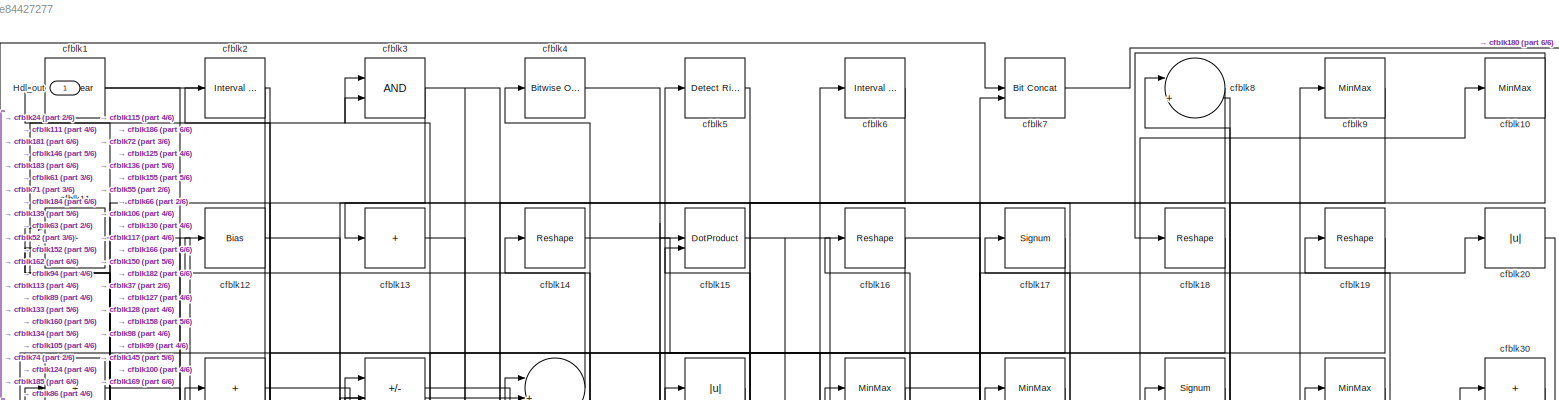
[diagram: root canvas - part 1/6, full width, top band]
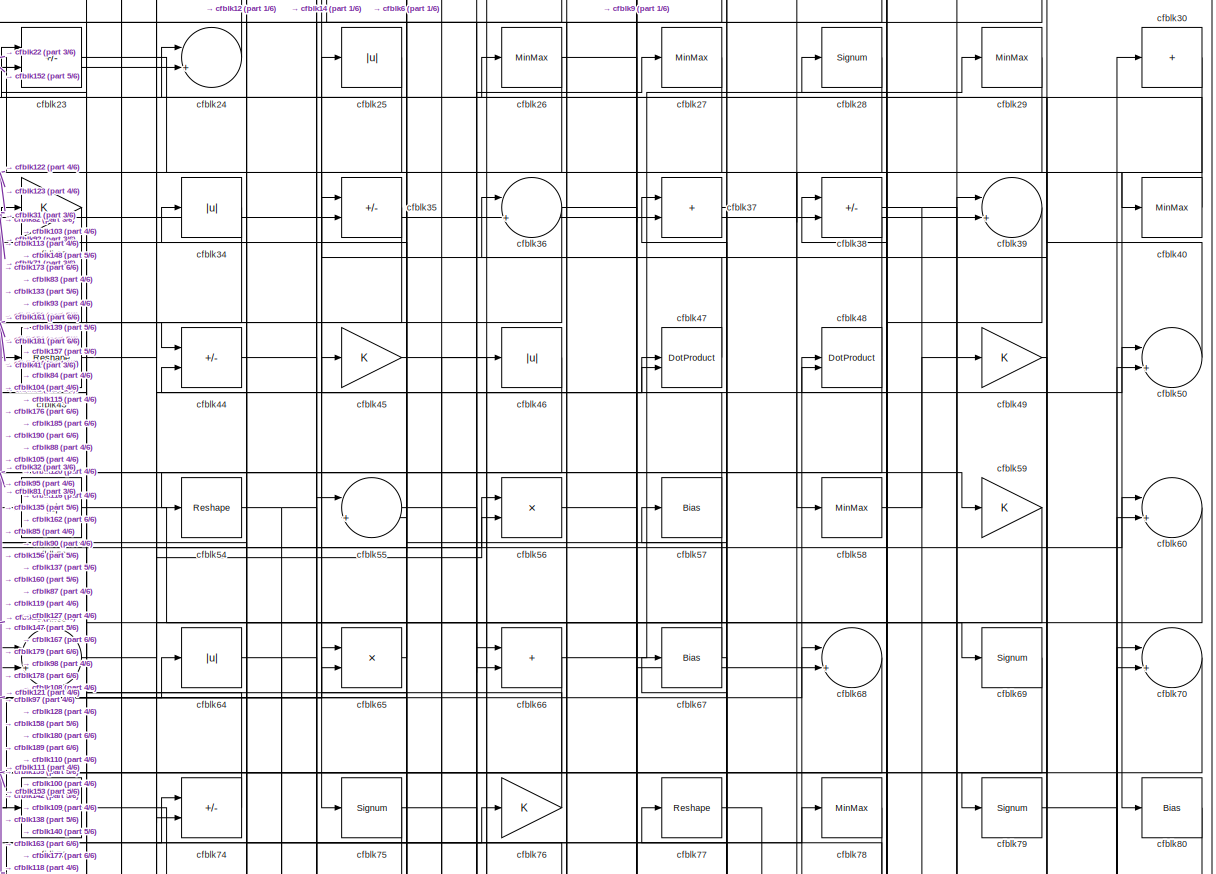
[diagram: root canvas - part 2/6, full width, top band]
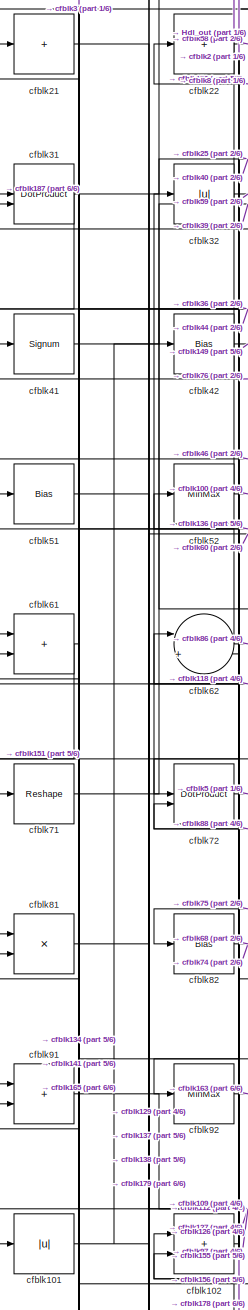
[diagram: root canvas - part 3/6, middle left region]
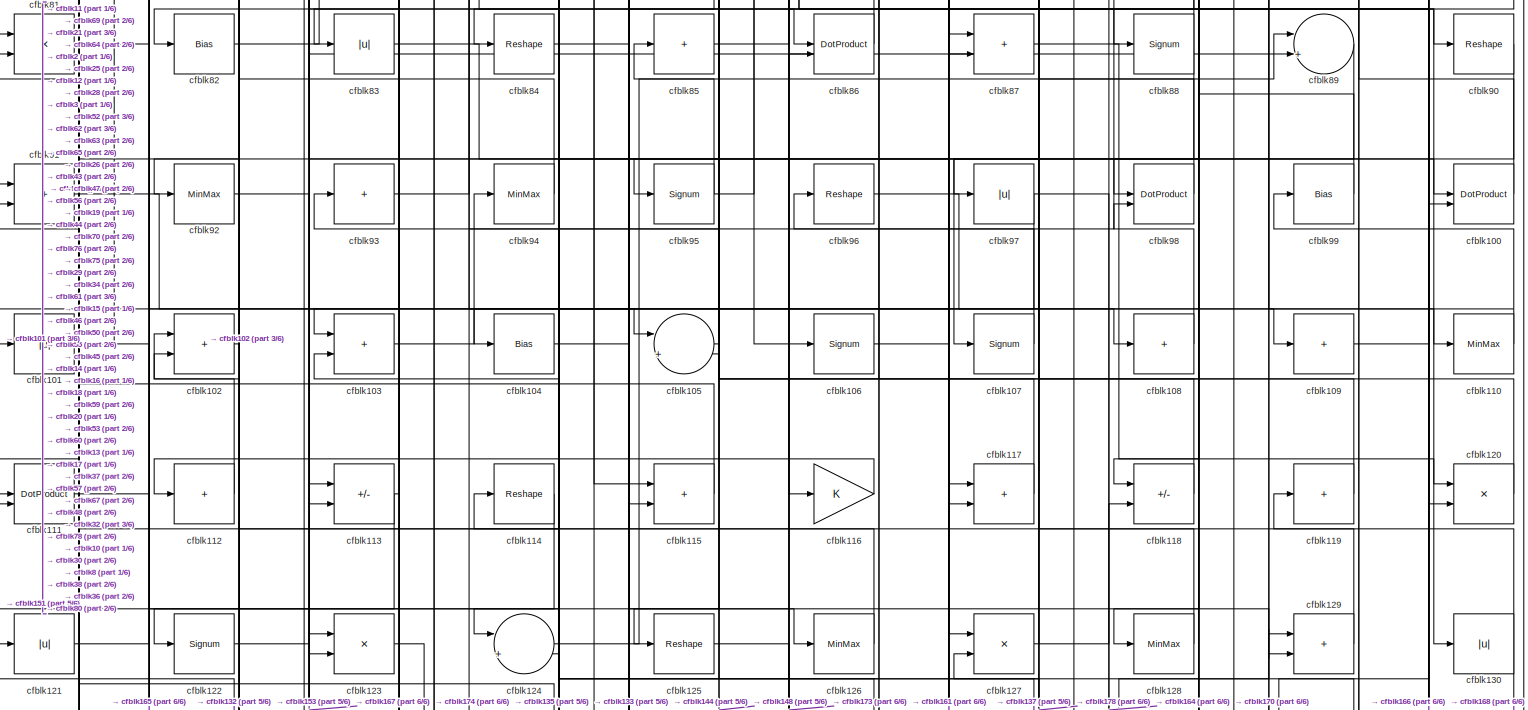
[diagram: root canvas - part 4/6, full width, middle band]
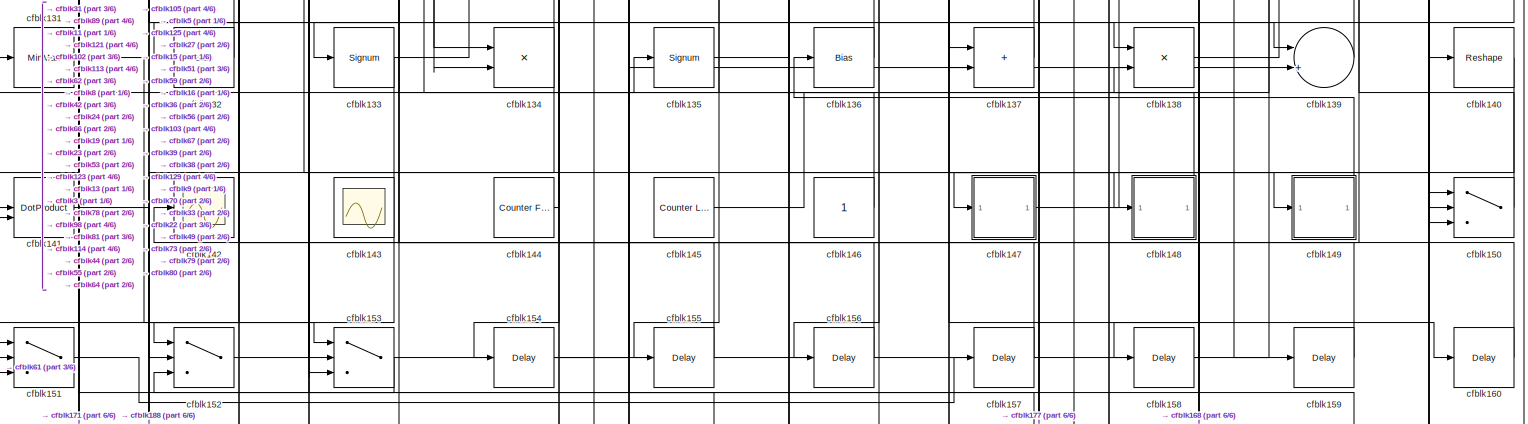
[diagram: root canvas - part 5/6, full width, bottom band]
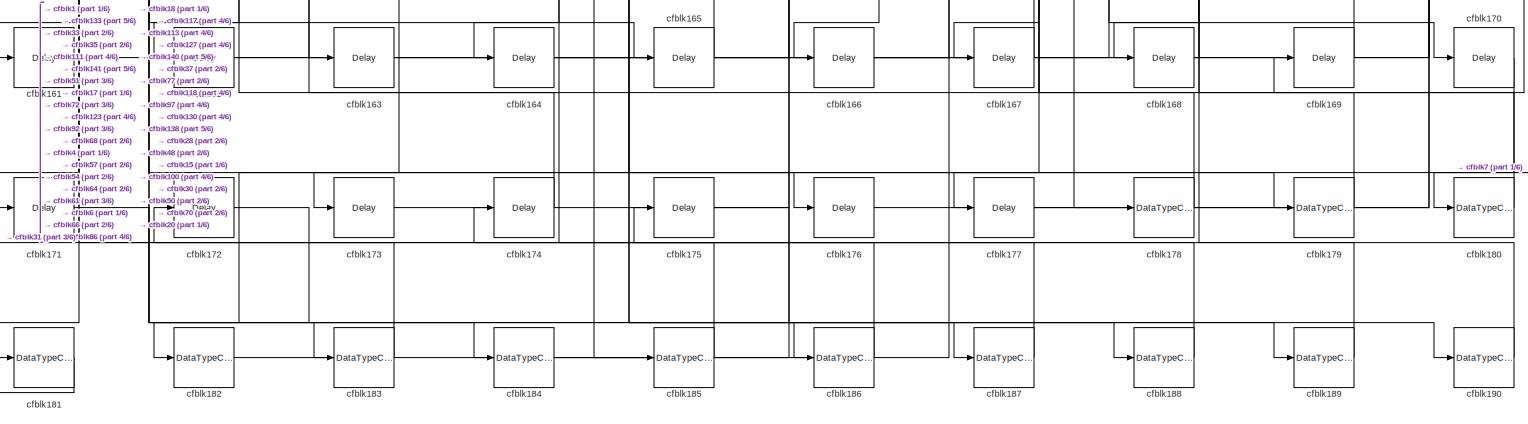
[diagram: root canvas - part 6/6, full width, bottom band]
MODEL slx_bbee84427277
KIND model
CONFIG AbsTol = auto
CONFIG EnableMultiTasking = off
CONFIG FixedStep = auto
CONFIG MaxStep = auto
CONFIG MinStep = auto
CONFIG RelTol = 1e-3
CONFIG SampleTimeConstraint = Unconstrained
CONFIG SolverName = VariableStepAuto
CONFIG StartTime = 0.0
CONFIG StopTime = 10.0
BLOCK [Outport] Hdl_out
  OutDataTypeStr = uint8
BLOCK [Reference] cfblk1  REF=simulink/Logic and Bit
Operations/Bit Clear
  LibrarySourceBlock = hdlsllib/Logic and Bit\nOperations/Bit Clear
  SourceBlock = simulink/Logic and Bit\nOperations/Bit Clear
  SourceType = Bit Clear
BLOCK [MinMax] cfblk10
  OutDataTypeStr = uint8
BLOCK [DotProduct] cfblk100
  OutDataTypeStr = uint8
BLOCK [Abs] cfblk101
  OutDataTypeStr = uint8
  SaturateOnIntegerOverflow = off
BLOCK [Sum] cfblk102
  IconShape = rectangular
  OutDataTypeStr = uint8
BLOCK [Sum] cfblk103
  IconShape = rectangular
  OutDataTypeStr = uint8
BLOCK [Bias] cfblk104
  Bias = 0.0
  SaturateOnIntegerOverflow = off
BLOCK [Sum] cfblk105
  Inputs = |++
  OutDataTypeStr = uint8
BLOCK [Signum] cfblk106
BLOCK [Signum] cfblk107
BLOCK [Sum] cfblk108
  IconShape = rectangular
  Inputs = +
  OutDataTypeStr = uint8
BLOCK [Sum] cfblk109
  IconShape = rectangular
  Inputs = +
  OutDataTypeStr = uint8
BLOCK [Sum] cfblk11
  IconShape = rectangular
  OutDataTypeStr = uint8
BLOCK [MinMax] cfblk110
  OutDataTypeStr = uint8
BLOCK [DotProduct] cfblk111
  OutDataTypeStr = uint8
BLOCK [Sum] cfblk112
  IconShape = rectangular
  Inputs = +
  OutDataTypeStr = uint8
BLOCK [Sum] cfblk113
  IconShape = rectangular
  Inputs = +-
  OutDataTypeStr = uint8
BLOCK [Reshape] cfblk114
BLOCK [Sum] cfblk115
  IconShape = rectangular
  OutDataTypeStr = uint8
BLOCK [Gain] cfblk116
  OutDataTypeStr = uint8
BLOCK [Sum] cfblk117
  IconShape = rectangular
  OutDataTypeStr = uint8
BLOCK [Sum] cfblk118
  IconShape = rectangular
  Inputs = +-
  OutDataTypeStr = uint8
BLOCK [Sum] cfblk119
  IconShape = rectangular
  Inputs = +
  OutDataTypeStr = uint8
BLOCK [Bias] cfblk12
  Bias = 0.0
  SaturateOnIntegerOverflow = off
BLOCK [Product] cfblk120
  Inputs = */
  OutDataTypeStr = uint8
  RndMeth = Zero
  SaturateOnIntegerOverflow = on
BLOCK [Abs] cfblk121
  OutDataTypeStr = uint8
  SaturateOnIntegerOverflow = off
BLOCK [Signum] cfblk122
BLOCK [Product] cfblk123
  Inputs = */
  OutDataTypeStr = uint8
  RndMeth = Zero
  SaturateOnIntegerOverflow = on
BLOCK [Sum] cfblk124
  Inputs = |++
  OutDataTypeStr = uint8
BLOCK [Reshape] cfblk125
BLOCK [MinMax] cfblk126
  OutDataTypeStr = uint8
BLOCK [Product] cfblk127
  Inputs = */
  OutDataTypeStr = uint8
  RndMeth = Zero
  SaturateOnIntegerOverflow = on
BLOCK [MinMax] cfblk128
  OutDataTypeStr = uint8
BLOCK [Sum] cfblk129
  IconShape = rectangular
  OutDataTypeStr = uint8
BLOCK [Sum] cfblk13
  IconShape = rectangular
  Inputs = +
  OutDataTypeStr = uint8
BLOCK [Abs] cfblk130
  OutDataTypeStr = uint8
  SaturateOnIntegerOverflow = off
BLOCK [MinMax] cfblk131
  OutDataTypeStr = uint8
BLOCK [Bias] cfblk132
  Bias = 0.0
  SaturateOnIntegerOverflow = off
BLOCK [Signum] cfblk133
BLOCK [Product] cfblk134
  Inputs = */
  OutDataTypeStr = uint8
  RndMeth = Zero
  SaturateOnIntegerOverflow = on
BLOCK [Signum] cfblk135
BLOCK [Bias] cfblk136
  Bias = 0.0
  SaturateOnIntegerOverflow = off
BLOCK [Sum] cfblk137
  IconShape = rectangular
  OutDataTypeStr = uint8
BLOCK [Product] cfblk138
  Inputs = */
  OutDataTypeStr = uint8
  RndMeth = Zero
  SaturateOnIntegerOverflow = on
BLOCK [Sum] cfblk139
  Inputs = |++
  OutDataTypeStr = uint8
BLOCK [Reshape] cfblk14
BLOCK [Reshape] cfblk140
BLOCK [DotProduct] cfblk141
  OutDataTypeStr = uint8
BLOCK [Scope] cfblk142
  Floating = off
  NumInputPorts = 1
  ScopeSpecificationString = Simulink.scopes.TimeScopeBlockCfg('CurrentConfiguration', extmgr.ConfigurationSet(extmgr.Configuration('Core','General UI',true),extmgr.Configuration('Core','Source UI',true),extmgr.Configuration('Sources','WiredSimulink',true,'DataLoggingVariableName','ScopeData2','DataLoggingSaveFormat','Array','DataLoggingLimitDataPoints',true,'DataLoggingDecimation','1'),extmgr.Configuration('Visuals','Time Do...<+868ch>
BLOCK [Scope] cfblk143
  Floating = on
  NumInputPorts = 1
  ScopeSpecificationString = Simulink.scopes.TimeScopeBlockCfg('CurrentConfiguration', extmgr.ConfigurationSet(extmgr.Configuration('Core','General UI',true,'FigureColor',[0.156862745098039 0.156862745098039 0.156862745098039]),extmgr.Configuration('Core','Source UI',true),extmgr.Configuration('Sources','WiredSimulink',true,'DataLoggingVariableName','ScopeData1','DataLoggingSaveFormat','StructureWithTime','DataLoggingLimitDat...<+2713ch>
BLOCK [Reference] cfblk144  REF=hdlsllib/Sources/Counter
Free-Running
  SourceBlock = hdlsllib/Sources/Counter\nFree-Running
  SourceType = Counter Free-Running
BLOCK [Reference] cfblk145  REF=hdlsllib/Sources/Counter
Limited
  SourceBlock = hdlsllib/Sources/Counter\nLimited
  SourceType = Counter Limited
BLOCK [Constant] cfblk146
  OutDataTypeStr = uint8
  SampleTime = -1
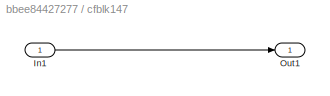
BLOCK [SubSystem] cfblk147
  LibrarySourceBlock = hdlsllib/Ports &\nSubsystems/Subsystem
BLOCK [Inport] cfblk147/In1
BLOCK [Outport] cfblk147/Out1
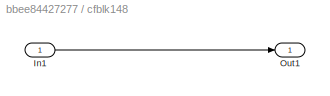
BLOCK [SubSystem] cfblk148
  LibrarySourceBlock = hdlsllib/Ports &\nSubsystems/Subsystem
BLOCK [Inport] cfblk148/In1
BLOCK [Outport] cfblk148/Out1
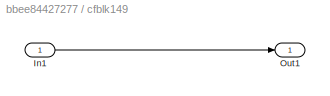
BLOCK [SubSystem] cfblk149
  LibrarySourceBlock = hdlsllib/Ports &\nSubsystems/Subsystem
BLOCK [Inport] cfblk149/In1
BLOCK [Outport] cfblk149/Out1
BLOCK [DotProduct] cfblk15
  OutDataTypeStr = uint8
BLOCK [Switch] cfblk150
  InputSameDT = off
  OutDataTypeStr = uint8
  SaturateOnIntegerOverflow = off
BLOCK [Switch] cfblk151
  InputSameDT = off
  OutDataTypeStr = uint8
  SaturateOnIntegerOverflow = off
BLOCK [Switch] cfblk152
  InputSameDT = off
  OutDataTypeStr = uint8
  SaturateOnIntegerOverflow = off
BLOCK [Switch] cfblk153
  InputSameDT = off
  OutDataTypeStr = uint8
  SaturateOnIntegerOverflow = off
BLOCK [Delay] cfblk154
  InputPortMap = u0
  SampleTime = 1
BLOCK [Delay] cfblk155
  InputPortMap = u0
  SampleTime = 1
BLOCK [Delay] cfblk156
  InputPortMap = u0
  SampleTime = 1
BLOCK [Delay] cfblk157
  InputPortMap = u0
  SampleTime = 1
BLOCK [Delay] cfblk158
  InputPortMap = u0
  SampleTime = 1
BLOCK [Delay] cfblk159
  InputPortMap = u0
  SampleTime = 1
BLOCK [Reshape] cfblk16
BLOCK [Delay] cfblk160
  InputPortMap = u0
  SampleTime = 1
BLOCK [Delay] cfblk161
  InputPortMap = u0
  SampleTime = 1
BLOCK [Delay] cfblk162
  InputPortMap = u0
  SampleTime = 1
BLOCK [Delay] cfblk163
  InputPortMap = u0
  SampleTime = 1
BLOCK [Delay] cfblk164
  InputPortMap = u0
  SampleTime = 1
BLOCK [Delay] cfblk165
  InputPortMap = u0
  SampleTime = 1
BLOCK [Delay] cfblk166
  InputPortMap = u0
  SampleTime = 1
BLOCK [Delay] cfblk167
  InputPortMap = u0
  SampleTime = 1
BLOCK [Delay] cfblk168
  InputPortMap = u0
  SampleTime = 1
BLOCK [Delay] cfblk169
  InputPortMap = u0
  SampleTime = 1
BLOCK [Signum] cfblk17
BLOCK [Delay] cfblk170
  InputPortMap = u0
  SampleTime = 1
BLOCK [Delay] cfblk171
  InputPortMap = u0
  SampleTime = 1
BLOCK [Delay] cfblk172
  InputPortMap = u0
  SampleTime = 1
BLOCK [Delay] cfblk173
  InputPortMap = u0
  SampleTime = 1
BLOCK [Delay] cfblk174
  InputPortMap = u0
  SampleTime = 1
BLOCK [Delay] cfblk175
  InputPortMap = u0
  SampleTime = 1
BLOCK [Delay] cfblk176
  InputPortMap = u0
  SampleTime = 1
BLOCK [Delay] cfblk177
  InputPortMap = u0
  SampleTime = 1
BLOCK [DataTypeConversion] cfblk178
  OutDataTypeStr = uint8
  RndMeth = Floor
  SaturateOnIntegerOverflow = off
BLOCK [DataTypeConversion] cfblk179
  OutDataTypeStr = uint8
  RndMeth = Floor
  SaturateOnIntegerOverflow = off
BLOCK [Reshape] cfblk18
BLOCK [DataTypeConversion] cfblk180
  OutDataTypeStr = uint8
  RndMeth = Floor
  SaturateOnIntegerOverflow = off
BLOCK [DataTypeConversion] cfblk181
  OutDataTypeStr = uint8
  RndMeth = Floor
  SaturateOnIntegerOverflow = off
BLOCK [DataTypeConversion] cfblk182
  OutDataTypeStr = uint8
  RndMeth = Floor
  SaturateOnIntegerOverflow = off
BLOCK [DataTypeConversion] cfblk183
  OutDataTypeStr = uint8
  RndMeth = Floor
  SaturateOnIntegerOverflow = off
BLOCK [DataTypeConversion] cfblk184
  OutDataTypeStr = uint8
  RndMeth = Floor
  SaturateOnIntegerOverflow = off
BLOCK [DataTypeConversion] cfblk185
  OutDataTypeStr = uint8
  RndMeth = Floor
  SaturateOnIntegerOverflow = off
BLOCK [DataTypeConversion] cfblk186
  OutDataTypeStr = uint8
  RndMeth = Floor
  SaturateOnIntegerOverflow = off
BLOCK [DataTypeConversion] cfblk187
  OutDataTypeStr = uint8
  RndMeth = Floor
  SaturateOnIntegerOverflow = off
BLOCK [DataTypeConversion] cfblk188
  OutDataTypeStr = uint8
  RndMeth = Floor
  SaturateOnIntegerOverflow = off
BLOCK [DataTypeConversion] cfblk189
  OutDataTypeStr = uint8
  RndMeth = Floor
  SaturateOnIntegerOverflow = off
BLOCK [Reshape] cfblk19
BLOCK [DataTypeConversion] cfblk190
  OutDataTypeStr = uint8
  RndMeth = Floor
  SaturateOnIntegerOverflow = off
BLOCK [Reference] cfblk2  REF=hdlsllib/Logic and Bit
Operations/Interval Test
  SourceBlock = hdlsllib/Logic and Bit\nOperations/Interval Test
  SourceType = Interval Test
BLOCK [Abs] cfblk20
  OutDataTypeStr = uint8
  SaturateOnIntegerOverflow = off
BLOCK [Sum] cfblk21
  IconShape = rectangular
  Inputs = +
  OutDataTypeStr = uint8
BLOCK [Sum] cfblk22
  IconShape = rectangular
  Inputs = +
  OutDataTypeStr = uint8
BLOCK [Sum] cfblk23
  IconShape = rectangular
  Inputs = +-
  OutDataTypeStr = uint8
BLOCK [Sum] cfblk24
  Inputs = |++
  OutDataTypeStr = uint8
BLOCK [Abs] cfblk25
  OutDataTypeStr = uint8
  SaturateOnIntegerOverflow = off
BLOCK [MinMax] cfblk26
  OutDataTypeStr = uint8
BLOCK [MinMax] cfblk27
  OutDataTypeStr = uint8
BLOCK [Signum] cfblk28
BLOCK [MinMax] cfblk29
  OutDataTypeStr = uint8
BLOCK [Logic] cfblk3
  AllPortsSameDT = off
  OutDataTypeStr = boolean
BLOCK [Sum] cfblk30
  IconShape = rectangular
  Inputs = +
  OutDataTypeStr = uint8
BLOCK [DotProduct] cfblk31
  OutDataTypeStr = uint8
BLOCK [Abs] cfblk32
  OutDataTypeStr = uint8
  SaturateOnIntegerOverflow = off
BLOCK [Gain] cfblk33
  OutDataTypeStr = uint8
BLOCK [Abs] cfblk34
  OutDataTypeStr = uint8
  SaturateOnIntegerOverflow = off
BLOCK [Sum] cfblk35
  IconShape = rectangular
  Inputs = +-
  OutDataTypeStr = uint8
BLOCK [Sum] cfblk36
  Inputs = |++
  OutDataTypeStr = uint8
BLOCK [Sum] cfblk37
  IconShape = rectangular
  OutDataTypeStr = uint8
BLOCK [Sum] cfblk38
  IconShape = rectangular
  Inputs = +-
  OutDataTypeStr = uint8
BLOCK [Sum] cfblk39
  Inputs = |++
  OutDataTypeStr = uint8
BLOCK [Reference] cfblk4  REF=simulink/Logic and Bit
Operations/Bitwise
Operator
  LibrarySourceBlock = hdlsllib/Logic and Bit\nOperations/Bitwise\nOperator
  SourceBlock = simulink/Logic and Bit\nOperations/Bitwise\nOperator
  SourceType = Bitwise Operator
BLOCK [MinMax] cfblk40
  OutDataTypeStr = uint8
BLOCK [Signum] cfblk41
BLOCK [Bias] cfblk42
  Bias = 0.0
  SaturateOnIntegerOverflow = off
BLOCK [Reshape] cfblk43
BLOCK [Sum] cfblk44
  IconShape = rectangular
  Inputs = +-
  OutDataTypeStr = uint8
BLOCK [Gain] cfblk45
  OutDataTypeStr = uint8
BLOCK [Abs] cfblk46
  OutDataTypeStr = uint8
  SaturateOnIntegerOverflow = off
BLOCK [DotProduct] cfblk47
  OutDataTypeStr = uint8
BLOCK [DotProduct] cfblk48
  OutDataTypeStr = uint8
BLOCK [Gain] cfblk49
  OutDataTypeStr = uint8
BLOCK [Reference] cfblk5  REF=hdlsllib/Logic and Bit
Operations/Detect Rise
Nonnegative
  SourceBlock = hdlsllib/Logic and Bit\nOperations/Detect Rise\nNonnegative
  SourceType = Detect Rise Nonnegative
BLOCK [Sum] cfblk50
  Inputs = |++
  OutDataTypeStr = uint8
BLOCK [Bias] cfblk51
  Bias = 0.0
  SaturateOnIntegerOverflow = off
BLOCK [MinMax] cfblk52
  OutDataTypeStr = uint8
BLOCK [Abs] cfblk53
  OutDataTypeStr = uint8
  SaturateOnIntegerOverflow = off
BLOCK [Reshape] cfblk54
BLOCK [Sum] cfblk55
  Inputs = |++
  OutDataTypeStr = uint8
BLOCK [Product] cfblk56
  Inputs = */
  OutDataTypeStr = uint8
  RndMeth = Zero
  SaturateOnIntegerOverflow = on
BLOCK [Bias] cfblk57
  Bias = 0.0
  SaturateOnIntegerOverflow = off
BLOCK [MinMax] cfblk58
  OutDataTypeStr = uint8
BLOCK [Gain] cfblk59
  OutDataTypeStr = uint8
BLOCK [Reference] cfblk6  REF=hdlsllib/Logic and Bit
Operations/Interval Test
  SourceBlock = hdlsllib/Logic and Bit\nOperations/Interval Test
  SourceType = Interval Test
BLOCK [Sum] cfblk60
  Inputs = |++
  OutDataTypeStr = uint8
BLOCK [Sum] cfblk61
  IconShape = rectangular
  OutDataTypeStr = uint8
BLOCK [Sum] cfblk62
  Inputs = |++
  OutDataTypeStr = uint8
BLOCK [Sum] cfblk63
  Inputs = |++
  OutDataTypeStr = uint8
BLOCK [Abs] cfblk64
  OutDataTypeStr = uint8
  SaturateOnIntegerOverflow = off
BLOCK [Product] cfblk65
  Inputs = */
  OutDataTypeStr = uint8
  RndMeth = Zero
  SaturateOnIntegerOverflow = on
BLOCK [Sum] cfblk66
  IconShape = rectangular
  OutDataTypeStr = uint8
BLOCK [Bias] cfblk67
  Bias = 0.0
  SaturateOnIntegerOverflow = off
BLOCK [Sum] cfblk68
  Inputs = |++
  OutDataTypeStr = uint8
BLOCK [Signum] cfblk69
BLOCK [Reference] cfblk7  REF=hdlsllib/Logic and Bit
Operations/Bit Concat
  SourceBlock = hdlsllib/Logic and Bit\nOperations/Bit Concat
  SourceType = Bit Concat
BLOCK [Sum] cfblk70
  Inputs = |++
  OutDataTypeStr = uint8
BLOCK [Reshape] cfblk71
BLOCK [DotProduct] cfblk72
  OutDataTypeStr = uint8
BLOCK [MinMax] cfblk73
  OutDataTypeStr = uint8
BLOCK [Sum] cfblk74
  IconShape = rectangular
  Inputs = +-
  OutDataTypeStr = uint8
BLOCK [Signum] cfblk75
BLOCK [Gain] cfblk76
  OutDataTypeStr = uint8
BLOCK [Reshape] cfblk77
BLOCK [MinMax] cfblk78
  OutDataTypeStr = uint8
BLOCK [Signum] cfblk79
BLOCK [Sum] cfblk8
  Inputs = |++
  OutDataTypeStr = uint8
BLOCK [Bias] cfblk80
  Bias = 0.0
  SaturateOnIntegerOverflow = off
BLOCK [Product] cfblk81
  Inputs = */
  OutDataTypeStr = uint8
  RndMeth = Zero
  SaturateOnIntegerOverflow = on
BLOCK [Bias] cfblk82
  Bias = 0.0
  SaturateOnIntegerOverflow = off
BLOCK [Abs] cfblk83
  OutDataTypeStr = uint8
  SaturateOnIntegerOverflow = off
BLOCK [Reshape] cfblk84
BLOCK [Sum] cfblk85
  IconShape = rectangular
  Inputs = +
  OutDataTypeStr = uint8
BLOCK [DotProduct] cfblk86
  OutDataTypeStr = uint8
BLOCK [Sum] cfblk87
  IconShape = rectangular
  OutDataTypeStr = uint8
BLOCK [Signum] cfblk88
BLOCK [Sum] cfblk89
  Inputs = |++
  OutDataTypeStr = uint8
BLOCK [MinMax] cfblk9
  OutDataTypeStr = uint8
BLOCK [Reshape] cfblk90
BLOCK [Sum] cfblk91
  IconShape = rectangular
  OutDataTypeStr = uint8
BLOCK [MinMax] cfblk92
  OutDataTypeStr = uint8
BLOCK [Sum] cfblk93
  IconShape = rectangular
  Inputs = +
  OutDataTypeStr = uint8
BLOCK [MinMax] cfblk94
  OutDataTypeStr = uint8
BLOCK [Signum] cfblk95
BLOCK [Reshape] cfblk96
BLOCK [Abs] cfblk97
  OutDataTypeStr = uint8
  SaturateOnIntegerOverflow = off
BLOCK [DotProduct] cfblk98
  OutDataTypeStr = uint8
BLOCK [Bias] cfblk99
  Bias = 0.0
  SaturateOnIntegerOverflow = off
NET cfblk100:1 -> cfblk19:1, cfblk36:1
NET cfblk101:1 -> cfblk129:2, cfblk42:1
LINE cfblk102:1 -> cfblk62:1
LINE cfblk103:1 -> cfblk94:1
LINE cfblk104:1 -> cfblk76:1
LINE cfblk105:1 -> cfblk65:2
LINE cfblk106:1 -> cfblk20:1
LINE cfblk107:1 -> cfblk96:1
LINE cfblk108:1 -> cfblk48:1
LINE cfblk109:1 -> cfblk60:2
NET cfblk10:1 -> cfblk18:1, cfblk98:1
NET cfblk110:1 -> cfblk104:1, cfblk99:1
LINE cfblk111:1 -> cfblk165:1
LINE cfblk112:1 -> cfblk102:1
NET cfblk113:1 -> cfblk132:1, cfblk43:1
NET cfblk114:1 -> cfblk151:2, cfblk153:2
LINE cfblk115:1 -> cfblk11:1
LINE cfblk116:1 -> cfblk112:1
NET cfblk117:1 -> cfblk16:1, cfblk93:1
LINE cfblk118:1 -> cfblk61:1
LINE cfblk119:1 -> cfblk67:1
NET cfblk11:1 -> cfblk139:1, cfblk63:1
LINE cfblk120:1 -> cfblk34:1
LINE cfblk121:1 -> cfblk64:1
NET cfblk122:1 -> cfblk63:2, cfblk65:1
LINE cfblk123:1 -> cfblk135:1
LINE cfblk124:1 -> cfblk89:1
LINE cfblk125:1 -> cfblk148:1
LINE cfblk126:1 -> cfblk52:1
NET cfblk127:1 -> cfblk10:1, cfblk17:1, cfblk57:1
LINE cfblk128:1 -> cfblk13:1
LINE cfblk129:1 -> cfblk91:1
LINE cfblk12:1 -> cfblk89:2
NET cfblk130:1 -> cfblk119:1, cfblk168:1
LINE cfblk131:1 -> cfblk153:1
LINE cfblk132:1 -> cfblk121:1
NET cfblk133:1 -> cfblk171:1, cfblk78:1, cfblk98:2
NET cfblk134:1 -> cfblk152:2, cfblk81:1
LINE cfblk135:1 -> cfblk27:1
NET cfblk136:1 -> cfblk15:2, cfblk51:1
LINE cfblk137:1 -> cfblk103:2
LINE cfblk138:1 -> cfblk70:2
LINE cfblk139:1 -> cfblk33:1
LINE cfblk13:1 -> cfblk134:1
LINE cfblk140:1 -> cfblk177:1
LINE cfblk141:1 -> cfblk188:1
LINE cfblk144:1 -> cfblk114:1
LINE cfblk145:1 -> cfblk9:1
NET cfblk146:1 -> cfblk11:2, cfblk131:1
LINE cfblk147/In1:1 -> cfblk147/Out1:1
LINE cfblk147:1 -> cfblk39:1
LINE cfblk148/In1:1 -> cfblk148/Out1:1
NET cfblk148:1 -> cfblk105:2, cfblk53:1
LINE cfblk149/In1:1 -> cfblk149/Out1:1
LINE cfblk149:1 -> cfblk136:1
LINE cfblk14:1 -> cfblk66:2
LINE cfblk150:1 -> cfblk22:1
LINE cfblk151:1 -> cfblk157:1
LINE cfblk152:1 -> cfblk24:2
NET cfblk153:1 -> cfblk129:1, cfblk152:3
LINE cfblk154:1 -> cfblk55:1
LINE cfblk155:1 -> cfblk102:2
LINE cfblk156:1 -> cfblk62:2
LINE cfblk157:1 -> cfblk44:2
LINE cfblk158:1 -> cfblk8:2
LINE cfblk159:1 -> cfblk23:2
NET cfblk15:1 -> cfblk106:1, cfblk130:1
LINE cfblk160:1 -> cfblk3:2
LINE cfblk161:1 -> cfblk117:1
LINE cfblk162:1 -> cfblk66:1
LINE cfblk163:1 -> cfblk70:1
LINE cfblk164:1 -> cfblk118:2
LINE cfblk165:1 -> cfblk61:2
LINE cfblk166:1 -> cfblk100:2
LINE cfblk167:1 -> cfblk113:1
LINE cfblk168:1 -> cfblk138:2
LINE cfblk169:1 -> cfblk15:1
NET cfblk16:1 -> cfblk115:2, cfblk150:2
LINE cfblk170:1 -> cfblk182:1
LINE cfblk171:1 -> cfblk183:1
LINE cfblk172:1 -> cfblk187:1
LINE cfblk173:1 -> cfblk86:2
LINE cfblk174:1 -> cfblk123:1
LINE cfblk175:1 -> cfblk189:1
LINE cfblk176:1 -> cfblk50:2
LINE cfblk177:1 -> cfblk30:1
NET cfblk178:1 -> cfblk127:2, cfblk72:2
LINE cfblk179:1 -> cfblk77:1
LINE cfblk17:1 -> cfblk162:1
LINE cfblk180:1 -> cfblk28:1
LINE cfblk181:1 -> cfblk7:1
LINE cfblk182:1 -> cfblk7:2
LINE cfblk183:1 -> cfblk1:1
LINE cfblk184:1 -> cfblk6:1
LINE cfblk185:1 -> cfblk4:1
LINE cfblk186:1 -> cfblk174:1
LINE cfblk187:1 -> cfblk31:1
LINE cfblk188:1 -> cfblk172:1
LINE cfblk189:1 -> cfblk48:2
NET cfblk18:1 -> cfblk111:2, cfblk125:1, cfblk166:1
LINE cfblk190:1 -> cfblk175:1
NET cfblk19:1 -> cfblk124:1, cfblk133:1
LINE cfblk1:1 -> cfblk184:1
LINE cfblk20:1 -> cfblk169:1
LINE cfblk21:1 -> cfblk109:1
LINE cfblk22:1 -> cfblk58:1
LINE cfblk23:1 -> cfblk80:1
LINE cfblk24:1 -> cfblk12:1
NET cfblk25:1 -> cfblk122:1, cfblk92:1
NET cfblk26:1 -> cfblk68:2, cfblk83:1
LINE cfblk27:1 -> cfblk75:1
NET cfblk28:1 -> cfblk123:2, cfblk38:2
LINE cfblk29:1 -> cfblk95:1
LINE cfblk2:1 -> cfblk72:1
NET cfblk30:1 -> cfblk128:1, cfblk79:1
NET cfblk31:1 -> cfblk137:2, cfblk138:1, cfblk141:1, cfblk141:2, cfblk40:1
LINE cfblk32:1 -> cfblk59:1
LINE cfblk33:1 -> cfblk181:1
LINE cfblk34:1 -> cfblk73:1
LINE cfblk35:1 -> cfblk161:1
NET cfblk36:1 -> cfblk137:1, cfblk91:2
LINE cfblk37:1 -> cfblk167:1
NET cfblk38:1 -> cfblk110:1, cfblk159:1
LINE cfblk39:1 -> cfblk158:1
NET cfblk3:1 -> cfblk105:1, cfblk113:2, cfblk134:2
LINE cfblk40:1 -> cfblk24:1
LINE cfblk41:1 -> cfblk44:1
LINE cfblk42:1 -> cfblk149:1
LINE cfblk43:1 -> cfblk26:1
NET cfblk44:1 -> cfblk154:1, cfblk88:1
LINE cfblk45:1 -> cfblk120:2
LINE cfblk46:1 -> cfblk81:2
LINE cfblk47:1 -> cfblk35:1
NET cfblk48:1 -> cfblk36:2, cfblk54:1
LINE cfblk49:1 -> cfblk142:1
LINE cfblk4:1 -> cfblk186:1
LINE cfblk50:1 -> cfblk23:1
LINE cfblk51:1 -> cfblk179:1
NET cfblk52:1 -> Hdl_out:1, cfblk100:1
NET cfblk53:1 -> cfblk69:1, cfblk87:1
NET cfblk54:1 -> cfblk185:1, cfblk190:1
LINE cfblk55:1 -> cfblk116:1
LINE cfblk56:1 -> cfblk160:1
NET cfblk57:1 -> cfblk164:1, cfblk25:1
NET cfblk58:1 -> cfblk38:1, cfblk49:1
NET cfblk59:1 -> cfblk103:1, cfblk156:1
LINE cfblk5:1 -> cfblk155:1
LINE cfblk60:1 -> cfblk87:2
NET cfblk61:1 -> cfblk151:3, cfblk3:1
NET cfblk62:1 -> cfblk21:1, cfblk86:1
NET cfblk63:1 -> cfblk47:1, cfblk56:2
NET cfblk64:1 -> cfblk115:1, cfblk139:2, cfblk176:1
LINE cfblk65:1 -> cfblk45:1
NET cfblk66:1 -> cfblk153:3, cfblk29:1
NET cfblk67:1 -> cfblk147:1, cfblk35:2
LINE cfblk68:1 -> cfblk173:1
LINE cfblk69:1 -> cfblk111:1
LINE cfblk6:1 -> cfblk55:2
LINE cfblk70:1 -> cfblk84:1
LINE cfblk71:1 -> cfblk39:2
LINE cfblk72:1 -> cfblk5:1
LINE cfblk73:1 -> cfblk150:1
LINE cfblk74:1 -> cfblk31:2
NET cfblk75:1 -> cfblk82:1, cfblk90:1
LINE cfblk76:1 -> cfblk41:1
LINE cfblk77:1 -> cfblk178:1
LINE cfblk78:1 -> cfblk97:1
LINE cfblk79:1 -> cfblk140:1
LINE cfblk7:1 -> cfblk180:1
NET cfblk80:1 -> cfblk118:1, cfblk150:3
LINE cfblk81:1 -> cfblk60:1
NET cfblk82:1 -> cfblk68:1, cfblk74:1
LINE cfblk83:1 -> cfblk117:2
LINE cfblk84:1 -> cfblk126:1
LINE cfblk85:1 -> cfblk50:1
LINE cfblk86:1 -> cfblk14:1
LINE cfblk87:1 -> cfblk120:1
NET cfblk88:1 -> cfblk124:2, cfblk32:1
LINE cfblk89:1 -> cfblk151:1
NET cfblk8:1 -> cfblk152:1, cfblk71:1
LINE cfblk90:1 -> cfblk107:1
LINE cfblk91:1 -> cfblk127:1
LINE cfblk92:1 -> cfblk163:1
NET cfblk93:1 -> cfblk47:2, cfblk56:1
LINE cfblk94:1 -> cfblk2:1
NET cfblk95:1 -> cfblk46:1, cfblk85:1
LINE cfblk96:1 -> cfblk108:1
NET cfblk97:1 -> cfblk101:1, cfblk170:1
LINE cfblk98:1 -> cfblk37:1
LINE cfblk99:1 -> cfblk8:1
NET cfblk9:1 -> cfblk37:2, cfblk74:2
note: NET lines group one-source signal fan-out (src -> all destinations, sorted); 1:1 wires keep LINE
